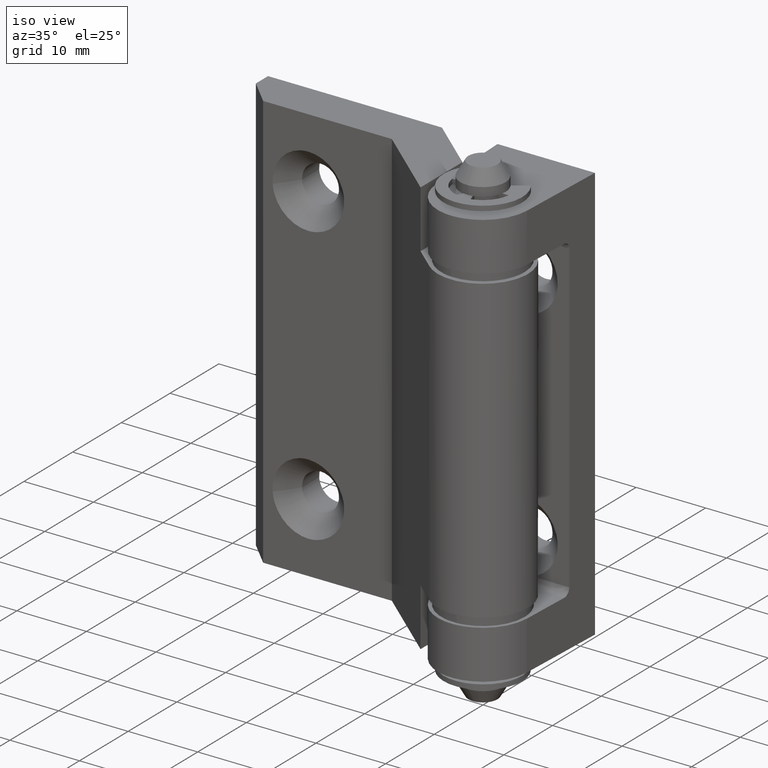
[diagram: clean part render]
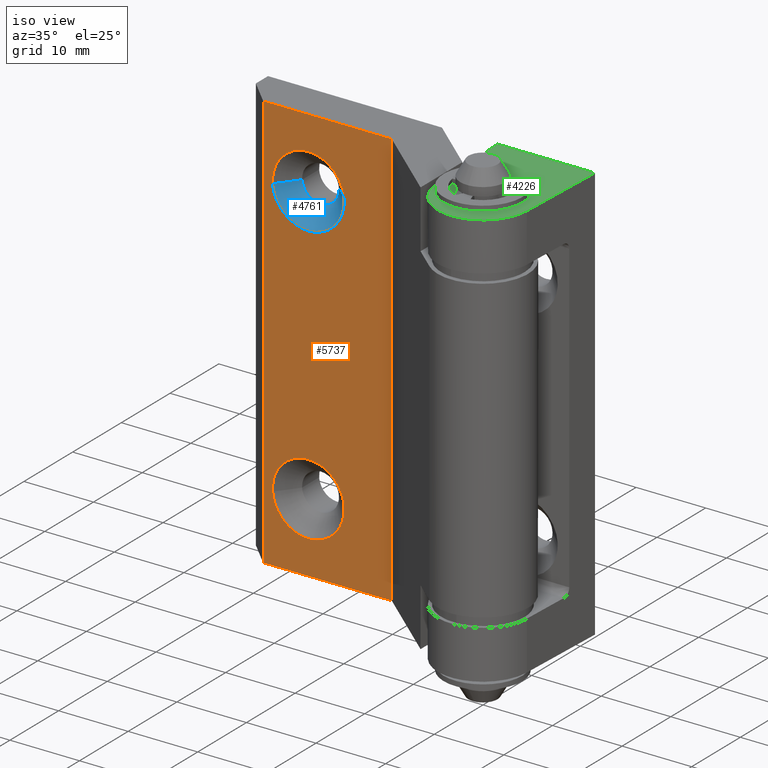
[diagram: same view with three faces highlighted in distinct colors, each labeled with its STEP entity id]
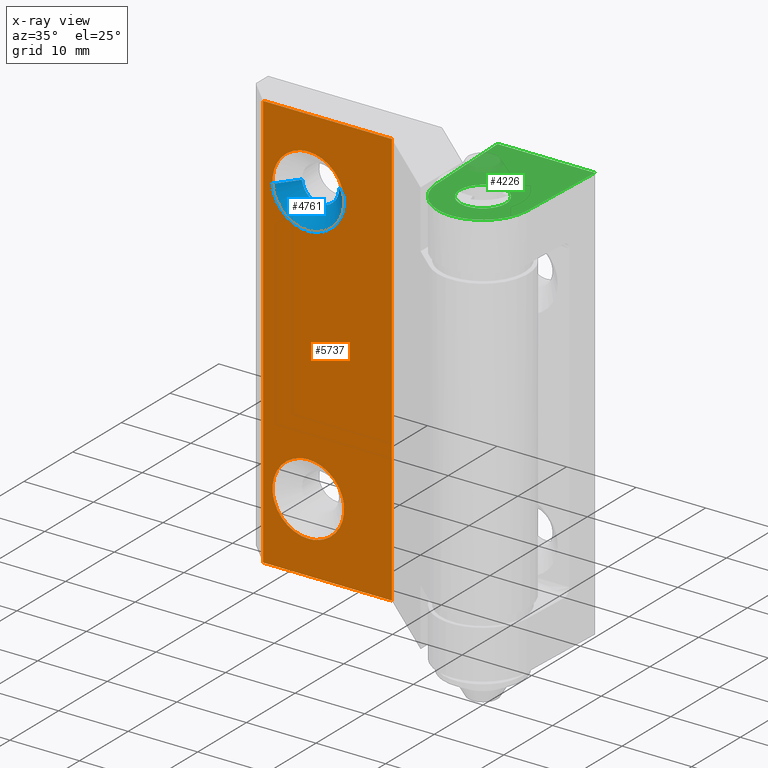
[diagram: x-ray of the same camera — body ghosted, the three highlighted faces saturated]
A machine part, iso view with three faces highlighted in distinct colors.
The next image is the same camera in x-ray (body ghosted, the three faces saturated) — at least one of them is partly hidden behind the body in this view.
Their STEP definitions:

[orange] entity #5737 — the highlighted face is a freeform B-spline surface patch.
#4654=CARTESIAN_POINT('',(-24.865905777742960,7.000000329918512,50.404066742920193));
#4655=VERTEX_POINT('',#4654);
#4661=CARTESIAN_POINT('',(-30.000030292437000,7.000000332482120,55.150002619484432));
#4662=VERTEX_POINT('',#4661);
#4663=CARTESIAN_POINT('',(-30.000030292437000,7.000000332482120,55.150002619484432));
#4664=CARTESIAN_POINT('',(-25.239419044801988,7.000000332482121,55.150002619484425));
#4665=CARTESIAN_POINT('',(-24.865905777742963,7.000000329918512,50.404066742920200));
#4673=(BOUNDED_CURVE()B_SPLINE_CURVE(2,(#4663,#4664,#4665),.UNSPECIFIED.,.F.,.U.)B_SPLINE_CURVE_WITH_KNOTS((3,3),(0.0,0.236331300255060),.UNSPECIFIED.)CURVE()GEOMETRIC_REPRESENTATION_ITEM()RATIONAL_B_SPLINE_CURVE((1.0,0.723120659047709,0.969723355383569))REPRESENTATION_ITEM(''));
#4674=EDGE_CURVE('',#4662,#4655,#4673,.T.);
#4676=CARTESIAN_POINT('',(-35.134154807131040,7.000000329918510,49.595938006824802));
#4677=VERTEX_POINT('',#4676);
#4678=CARTESIAN_POINT('',(-35.134154807131033,7.000000329918510,49.595938006824795));
#4679=CARTESIAN_POINT('',(-35.150030537048927,7.000000332482120,49.797658308489787));
#4680=CARTESIAN_POINT('',(-35.150030537048927,7.000000332482120,50.000002374872487));
#4681=CARTESIAN_POINT('',(-35.150030537048934,7.000000332482122,55.150002619484425));
#4682=CARTESIAN_POINT('',(-30.000030292437000,7.000000332482120,55.150002619484432));
#4690=(BOUNDED_CURVE()B_SPLINE_CURVE(2,(#4678,#4679,#4680,#4681,#4682),.UNSPECIFIED.,.F.,.U.)B_SPLINE_CURVE_WITH_KNOTS((3,2,3),(0.736331300255059,0.750000000000000,1.0),.UNSPECIFIED.)CURVE()GEOMETRIC_REPRESENTATION_ITEM()RATIONAL_B_SPLINE_CURVE((0.969723355383568,0.983986122138839,1.0,0.707106781186547,1.0))REPRESENTATION_ITEM(''));
#4691=EDGE_CURVE('',#4677,#4662,#4690,.T.);
#4728=CARTESIAN_POINT('',(-30.000030292437000,7.000000332482120,44.850002130260563));
#4729=VERTEX_POINT('',#4728);
#4730=CARTESIAN_POINT('',(-30.000030292437000,7.000000332482120,44.850002130260563));
#4731=CARTESIAN_POINT('',(-34.760641540072001,7.000000332482122,44.850002130260577));
#4732=CARTESIAN_POINT('',(-35.134154807131040,7.000000329918510,49.595938006824788));
#4740=(BOUNDED_CURVE()B_SPLINE_CURVE(2,(#4730,#4731,#4732),.UNSPECIFIED.,.F.,.U.)B_SPLINE_CURVE_WITH_KNOTS((3,3),(0.500000000000000,0.736331300255059),.UNSPECIFIED.)CURVE()GEOMETRIC_REPRESENTATION_ITEM()RATIONAL_B_SPLINE_CURVE((1.0,0.723120659047709,0.969723355383569))REPRESENTATION_ITEM(''));
#4741=EDGE_CURVE('',#4729,#4677,#4740,.T.);
#4743=CARTESIAN_POINT('',(-24.865905777742956,7.000000329918512,50.404066742920193));
#4744=CARTESIAN_POINT('',(-24.850030047825065,7.000000332482119,50.202346441255195));
#4745=CARTESIAN_POINT('',(-24.850030047825069,7.000000332482120,50.000002374872487));
#4746=CARTESIAN_POINT('',(-24.850030047825069,7.000000332482122,44.850002130260556));
#4747=CARTESIAN_POINT('',(-30.000030292437000,7.000000332482120,44.850002130260563));
#4755=(BOUNDED_CURVE()B_SPLINE_CURVE(2,(#4743,#4744,#4745,#4746,#4747),.UNSPECIFIED.,.F.,.U.)B_SPLINE_CURVE_WITH_KNOTS((3,2,3),(0.236331300255060,0.250000000000000,0.500000000000000),.UNSPECIFIED.)CURVE()GEOMETRIC_REPRESENTATION_ITEM()RATIONAL_B_SPLINE_CURVE((0.969723355383569,0.983986122138839,1.0,0.707106781186547,1.0))REPRESENTATION_ITEM(''));
#4756=EDGE_CURVE('',#4655,#4729,#4755,.T.);
#4986=CARTESIAN_POINT('',(-24.865905777742960,7.000000329918512,10.404066742920239));
#4987=VERTEX_POINT('',#4986);
#4993=CARTESIAN_POINT('',(-30.000030292437000,7.000000332482120,15.150002619484470));
#4994=VERTEX_POINT('',#4993);
#4995=CARTESIAN_POINT('',(-30.000030292437000,7.000000332482120,15.150002619484470));
#4996=CARTESIAN_POINT('',(-25.239419044801998,7.000000332482122,15.150002619484466));
#4997=CARTESIAN_POINT('',(-24.865905777742963,7.000000329918512,10.404066742920239));
#5005=(BOUNDED_CURVE()B_SPLINE_CURVE(2,(#4995,#4996,#4997),.UNSPECIFIED.,.F.,.U.)B_SPLINE_CURVE_WITH_KNOTS((3,3),(0.0,0.236331300255059),.UNSPECIFIED.)CURVE()GEOMETRIC_REPRESENTATION_ITEM()RATIONAL_B_SPLINE_CURVE((1.0,0.723120659047709,0.969723355383569))REPRESENTATION_ITEM(''));
#5006=EDGE_CURVE('',#4994,#4987,#5005,.T.);
#5008=CARTESIAN_POINT('',(-35.134154807131040,7.000000329918510,9.595938006824838));
#5009=VERTEX_POINT('',#5008);
#5010=CARTESIAN_POINT('',(-35.134154807131033,7.000000329918510,9.595938006824838));
#5011=CARTESIAN_POINT('',(-35.150030537048927,7.000000332482120,9.797658308489835));
#5012=CARTESIAN_POINT('',(-35.150030537048927,7.000000332482120,10.000002374872540));
#5013=CARTESIAN_POINT('',(-35.150030537048934,7.000000332482122,15.150002619484475));
#5014=CARTESIAN_POINT('',(-30.000030292437000,7.000000332482120,15.150002619484470));
#5022=(BOUNDED_CURVE()B_SPLINE_CURVE(2,(#5010,#5011,#5012,#5013,#5014),.UNSPECIFIED.,.F.,.U.)B_SPLINE_CURVE_WITH_KNOTS((3,2,3),(0.736331300255059,0.750000000000000,1.0),.UNSPECIFIED.)CURVE()GEOMETRIC_REPRESENTATION_ITEM()RATIONAL_B_SPLINE_CURVE((0.969723355383568,0.983986122138839,1.0,0.707106781186547,1.0))REPRESENTATION_ITEM(''));
#5023=EDGE_CURVE('',#5009,#4994,#5022,.T.);
#5060=CARTESIAN_POINT('',(-30.000030292437000,7.000000332482120,4.850002130260610));
#5061=VERTEX_POINT('',#5060);
#5062=CARTESIAN_POINT('',(-30.000030292437000,7.000000332482120,4.850002130260610));
#5063=CARTESIAN_POINT('',(-34.760641540072001,7.000000332482122,4.850002130260610));
#5064=CARTESIAN_POINT('',(-35.134154807131040,7.000000329918510,9.595938006824838));
#5072=(BOUNDED_CURVE()B_SPLINE_CURVE(2,(#5062,#5063,#5064),.UNSPECIFIED.,.F.,.U.)B_SPLINE_CURVE_WITH_KNOTS((3,3),(0.500000000000000,0.736331300255059),.UNSPECIFIED.)CURVE()GEOMETRIC_REPRESENTATION_ITEM()RATIONAL_B_SPLINE_CURVE((1.0,0.723120659047709,0.969723355383569))REPRESENTATION_ITEM(''));
#5073=EDGE_CURVE('',#5061,#5009,#5072,.T.);
#5075=CARTESIAN_POINT('',(-24.865905777742963,7.000000329918512,10.404066742920239));
#5076=CARTESIAN_POINT('',(-24.850030047825065,7.000000332482120,10.202346441255242));
#5077=CARTESIAN_POINT('',(-24.850030047825069,7.000000332482120,10.000002374872540));
#5078=CARTESIAN_POINT('',(-24.850030047825069,7.000000332482122,4.850002130260609));
#5079=CARTESIAN_POINT('',(-30.000030292437000,7.000000332482120,4.850002130260610));
#5087=(BOUNDED_CURVE()B_SPLINE_CURVE(2,(#5075,#5076,#5077,#5078,#5079),.UNSPECIFIED.,.F.,.U.)B_SPLINE_CURVE_WITH_KNOTS((3,2,3),(0.236331300255059,0.250000000000000,0.500000000000000),.UNSPECIFIED.)CURVE()GEOMETRIC_REPRESENTATION_ITEM()RATIONAL_B_SPLINE_CURVE((0.969723355383569,0.983986122138839,1.0,0.707106781186547,1.0))REPRESENTATION_ITEM(''));
#5088=EDGE_CURVE('',#4987,#5061,#5087,.T.);
#5639=CARTESIAN_POINT('',(-36.500030601170501,7.000000332482120,0.0));
#5640=VERTEX_POINT('',#5639);
#5646=CARTESIAN_POINT('',(-36.500030601170501,7.000000332482120,60.000002849847100));
#5647=VERTEX_POINT('',#5646);
#5648=CARTESIAN_POINT('',(-36.500030601170501,7.000000332482120,60.000002849847100));
#5649=CARTESIAN_POINT('',(-36.500030601170501,7.000000332482120,0.0));
#5650=QUASI_UNIFORM_CURVE('',1,(#5648,#5649),.UNSPECIFIED.,.F.,.U.);
#5651=EDGE_CURVE('',#5647,#5640,#5650,.T.);
#5698=CARTESIAN_POINT('',(-37.424105543110102,7.000000332482120,62.997004002379512));
#5699=CARTESIAN_POINT('',(-37.424105543110102,7.000000332482120,-2.997001688974236));
#5700=CARTESIAN_POINT('',(-17.075955607542781,7.000000332482120,62.997004002379512));
#5701=CARTESIAN_POINT('',(-17.075955607542781,7.000000332482120,-2.997001688974236));
#5702=B_SPLINE_SURFACE_WITH_KNOTS('',1,1,((#5698,#5700),(#5699,#5701)),.UNSPECIFIED.,.F.,.F.,.U.,(2,2),(2,2),(0.0,65.994005691353749),(0.0,20.348149935567321),.UNSPECIFIED.);
#5703=CARTESIAN_POINT('',(-18.000029722467900,7.000000332482120,0.0));
#5704=VERTEX_POINT('',#5703);
#5705=CARTESIAN_POINT('',(-18.000029722467900,7.000000332482120,0.0));
#5706=CARTESIAN_POINT('',(-36.500030601170501,7.000000332482120,0.0));
#5707=QUASI_UNIFORM_CURVE('',1,(#5705,#5706),.UNSPECIFIED.,.F.,.U.);
#5708=EDGE_CURVE('',#5704,#5640,#5707,.T.);
#5709=ORIENTED_EDGE('',*,*,#5708,.F.);
#5710=CARTESIAN_POINT('',(-18.000029722467900,7.000000332482120,60.000002849847100));
#5711=VERTEX_POINT('',#5710);
#5712=CARTESIAN_POINT('',(-18.000029722467900,7.000000332482120,60.000002849847100));
#5713=CARTESIAN_POINT('',(-18.000029722467900,7.000000332482120,0.0));
#5714=QUASI_UNIFORM_CURVE('',1,(#5712,#5713),.UNSPECIFIED.,.F.,.U.);
#5715=EDGE_CURVE('',#5711,#5704,#5714,.T.);
#5716=ORIENTED_EDGE('',*,*,#5715,.F.);
#5717=CARTESIAN_POINT('',(-18.000029722467900,7.000000332482120,60.000002849847100));
#5718=CARTESIAN_POINT('',(-36.500030601170501,7.000000332482120,60.000002849847100));
#5719=QUASI_UNIFORM_CURVE('',1,(#5717,#5718),.UNSPECIFIED.,.F.,.U.);
#5720=EDGE_CURVE('',#5711,#5647,#5719,.T.);
#5721=ORIENTED_EDGE('',*,*,#5720,.T.);
#5722=ORIENTED_EDGE('',*,*,#5651,.T.);
#5723=EDGE_LOOP('',(#5709,#5716,#5721,#5722));
#5724=FACE_OUTER_BOUND('',#5723,.T.);
#5725=ORIENTED_EDGE('',*,*,#5073,.T.);
#5726=ORIENTED_EDGE('',*,*,#5023,.T.);
#5727=ORIENTED_EDGE('',*,*,#5006,.T.);
#5728=ORIENTED_EDGE('',*,*,#5088,.T.);
#5729=EDGE_LOOP('',(#5725,#5726,#5727,#5728));
#5730=FACE_BOUND('',#5729,.T.);
#5731=ORIENTED_EDGE('',*,*,#4741,.T.);
#5732=ORIENTED_EDGE('',*,*,#4691,.T.);
#5733=ORIENTED_EDGE('',*,*,#4674,.T.);
#5734=ORIENTED_EDGE('',*,*,#4756,.T.);
#5735=EDGE_LOOP('',(#5731,#5732,#5733,#5734));
#5736=FACE_BOUND('',#5735,.T.);
#5737=ADVANCED_FACE('',(#5724,#5730,#5736),#5702,.T.);

[blue] entity #4761 — the highlighted face is a freeform B-spline surface patch.
#4448=CARTESIAN_POINT('',(-27.367336804793659,9.500000451225699,49.697635598882457));
#4449=VERTEX_POINT('',#4448);
#4450=CARTESIAN_POINT('',(-30.000030292437000,9.500000451225700,47.350002249004149));
#4451=VERTEX_POINT('',#4450);
#4452=CARTESIAN_POINT('',(-27.367336804793656,9.500000451225699,49.697635598882457));
#4453=CARTESIAN_POINT('',(-27.636964215162191,9.500000451225700,47.350002249004135));
#4454=CARTESIAN_POINT('',(-30.000030292437000,9.500000451225700,47.350002249004149));
#4462=(BOUNDED_CURVE()B_SPLINE_CURVE(2,(#4452,#4453,#4454),.UNSPECIFIED.,.F.,.U.)B_SPLINE_CURVE_WITH_KNOTS((3,3),(0.269767755885148,0.500000000000000),.UNSPECIFIED.)CURVE()GEOMETRIC_REPRESENTATION_ITEM()RATIONAL_B_SPLINE_CURVE((0.957343736443820,0.730266147786226,1.0))REPRESENTATION_ITEM(''));
#4463=EDGE_CURVE('',#4449,#4451,#4462,.T.);
#4502=CARTESIAN_POINT('',(-32.645087647627619,9.500000451225342,49.838223962053519));
#4503=VERTEX_POINT('',#4502);
#4509=CARTESIAN_POINT('',(-30.000030292437000,9.500000451225700,47.350002249004149));
#4510=CARTESIAN_POINT('',(-32.492901700245852,9.500000451225700,47.350002249004142));
#4511=CARTESIAN_POINT('',(-32.645087647627619,9.500000451225342,49.838223962053519));
#4519=(BOUNDED_CURVE()B_SPLINE_CURVE(2,(#4509,#4510,#4511),.UNSPECIFIED.,.F.,.U.)B_SPLINE_CURVE_WITH_KNOTS((3,3),(0.500000000000000,0.739332976895568),.UNSPECIFIED.)CURVE()GEOMETRIC_REPRESENTATION_ITEM()RATIONAL_B_SPLINE_CURVE((1.0,0.719603976115405,0.976072073078658))REPRESENTATION_ITEM(''));
#4520=EDGE_CURVE('',#4451,#4503,#4519,.T.);
#4551=CARTESIAN_POINT('',(-27.358199232539739,9.500000451164677,50.207918988897958));
#4552=VERTEX_POINT('',#4551);
#4553=CARTESIAN_POINT('',(-27.358199232539743,9.500000451164677,50.207918988897958));
#4554=CARTESIAN_POINT('',(-27.350030166568647,9.500000451225700,50.104121163856739));
#4555=CARTESIAN_POINT('',(-27.350030166568651,9.500000451225700,50.000002374872487));
#4556=CARTESIAN_POINT('',(-27.350030166568647,9.500000451225700,49.848323694784042));
#4557=CARTESIAN_POINT('',(-27.367336804793663,9.500000451225699,49.697635598882449));
#4565=(BOUNDED_CURVE()B_SPLINE_CURVE(2,(#4553,#4554,#4555,#4556,#4557),.UNSPECIFIED.,.F.,.U.)B_SPLINE_CURVE_WITH_KNOTS((3,2,3),(0.236331300572243,0.250000000000000,0.269767755885148),.UNSPECIFIED.)CURVE()GEOMETRIC_REPRESENTATION_ITEM()RATIONAL_B_SPLINE_CURVE((0.969723356045506,0.983986122510442,1.0,0.976840633400322,0.957343736443820))REPRESENTATION_ITEM(''));
#4566=EDGE_CURVE('',#4552,#4449,#4565,.T.);
#4654=CARTESIAN_POINT('',(-24.865905777742960,7.000000329918512,50.404066742920193));
#4655=VERTEX_POINT('',#4654);
#4656=CARTESIAN_POINT('',(-27.358199232539739,9.500000451164677,50.207918988897958));
#4657=CARTESIAN_POINT('',(-24.865905777742960,7.000000329918512,50.404066742920193));
#4658=QUASI_UNIFORM_CURVE('',1,(#4656,#4657),.UNSPECIFIED.,.F.,.U.);
#4659=EDGE_CURVE('',#4552,#4655,#4658,.T.);
#4676=CARTESIAN_POINT('',(-35.134154807131040,7.000000329918510,49.595938006824802));
#4677=VERTEX_POINT('',#4676);
#4693=CARTESIAN_POINT('',(-32.645087647627619,9.500000451225342,49.838223962053519));
#4694=CARTESIAN_POINT('',(-35.134154807131040,7.000000329918510,49.595938006824802));
#4695=QUASI_UNIFORM_CURVE('',1,(#4693,#4694),.UNSPECIFIED.,.F.,.U.);
#4696=EDGE_CURVE('',#4503,#4677,#4695,.T.);
#4702=CARTESIAN_POINT('',(-32.585902800216147,9.562500454194289,49.877658407207178));
#4703=CARTESIAN_POINT('',(-32.582749102072164,9.562500454194288,49.837586872913846));
#4704=CARTESIAN_POINT('',(-32.376541096153964,9.562500454194291,47.217465731478718));
#4705=CARTESIAN_POINT('',(-29.797017372598599,9.562500454194291,47.420478651317133));
#4706=CARTESIAN_POINT('',(-27.217493649043217,9.562500454194291,47.623491571155533));
#4707=CARTESIAN_POINT('',(-27.421946701380755,9.562500454194295,50.221313913091926));
#4708=CARTESIAN_POINT('',(-27.423378395456730,9.562500454194289,50.239505311141002));
#4709=CARTESIAN_POINT('',(-35.210813238366192,6.935937829439314,49.753467459353701));
#4710=CARTESIAN_POINT('',(-35.204458231900958,6.935937829439312,49.672719446106832));
#4711=CARTESIAN_POINT('',(-34.788929176496950,6.935937829439315,44.392922194314067));
#4712=CARTESIAN_POINT('',(-29.590939644187760,6.935937829439315,44.802012842563308));
#4713=CARTESIAN_POINT('',(-24.392950111878580,6.935937829439315,45.211103490812540));
#4714=CARTESIAN_POINT('',(-24.804942766256787,6.935937829439316,50.445966507141918));
#4715=CARTESIAN_POINT('',(-24.807827768147824,6.935937829439313,50.482623931833857));
#4723=(BOUNDED_SURFACE()B_SPLINE_SURFACE(2,1,((#4702,#4709),(#4703,#4710),(#4704,#4711),(#4705,#4712),(#4706,#4713),(#4707,#4714),(#4708,#4715)),.UNSPECIFIED.,.F.,.F.,.U.)B_SPLINE_SURFACE_WITH_KNOTS((3,1,2,1,3),(2,2),(0.0,0.193541851563522,8.832483872135187,17.471425892706851,17.558348414416020),(0.0,3.715428564997256),.UNSPECIFIED.)GEOMETRIC_REPRESENTATION_ITEM()RATIONAL_B_SPLINE_SURFACE(((1.013123619939703,1.013123619939703),(1.006561809969852,1.006561809969852),(0.707106781186548,0.707106781186548),(1.0,1.0),(0.707106781186548,0.707106781186548),(1.002947006370705,1.002947006370705),(1.005894012741411,1.005894012741411)))REPRESENTATION_ITEM('')SURFACE());
#4724=ORIENTED_EDGE('',*,*,#4566,.T.);
#4725=ORIENTED_EDGE('',*,*,#4463,.T.);
#4726=ORIENTED_EDGE('',*,*,#4520,.T.);
#4727=ORIENTED_EDGE('',*,*,#4696,.T.);
#4728=CARTESIAN_POINT('',(-30.000030292437000,7.000000332482120,44.850002130260563));
#4729=VERTEX_POINT('',#4728);
#4730=CARTESIAN_POINT('',(-30.000030292437000,7.000000332482120,44.850002130260563));
#4731=CARTESIAN_POINT('',(-34.760641540072001,7.000000332482122,44.850002130260577));
#4732=CARTESIAN_POINT('',(-35.134154807131040,7.000000329918510,49.595938006824788));
#4740=(BOUNDED_CURVE()B_SPLINE_CURVE(2,(#4730,#4731,#4732),.UNSPECIFIED.,.F.,.U.)B_SPLINE_CURVE_WITH_KNOTS((3,3),(0.500000000000000,0.736331300255059),.UNSPECIFIED.)CURVE()GEOMETRIC_REPRESENTATION_ITEM()RATIONAL_B_SPLINE_CURVE((1.0,0.723120659047709,0.969723355383569))REPRESENTATION_ITEM(''));
#4741=EDGE_CURVE('',#4729,#4677,#4740,.T.);
#4742=ORIENTED_EDGE('',*,*,#4741,.F.);
#4743=CARTESIAN_POINT('',(-24.865905777742956,7.000000329918512,50.404066742920193));
#4744=CARTESIAN_POINT('',(-24.850030047825065,7.000000332482119,50.202346441255195));
#4745=CARTESIAN_POINT('',(-24.850030047825069,7.000000332482120,50.000002374872487));
#4746=CARTESIAN_POINT('',(-24.850030047825069,7.000000332482122,44.850002130260556));
#4747=CARTESIAN_POINT('',(-30.000030292437000,7.000000332482120,44.850002130260563));
#4755=(BOUNDED_CURVE()B_SPLINE_CURVE(2,(#4743,#4744,#4745,#4746,#4747),.UNSPECIFIED.,.F.,.U.)B_SPLINE_CURVE_WITH_KNOTS((3,2,3),(0.236331300255060,0.250000000000000,0.500000000000000),.UNSPECIFIED.)CURVE()GEOMETRIC_REPRESENTATION_ITEM()RATIONAL_B_SPLINE_CURVE((0.969723355383569,0.983986122138839,1.0,0.707106781186547,1.0))REPRESENTATION_ITEM(''));
#4756=EDGE_CURVE('',#4655,#4729,#4755,.T.);
#4757=ORIENTED_EDGE('',*,*,#4756,.F.);
#4758=ORIENTED_EDGE('',*,*,#4659,.F.);
#4759=EDGE_LOOP('',(#4724,#4725,#4726,#4727,#4742,#4757,#4758));
#4760=FACE_OUTER_BOUND('',#4759,.T.);
#4761=ADVANCED_FACE('',(#4760),#4723,.F.);

[green] entity #4226 — the highlighted face is a freeform B-spline surface patch.
#3541=CARTESIAN_POINT('',(0.028768699835959,3.299874346109976,60.000002849847093));
#3542=VERTEX_POINT('',#3541);
#3548=CARTESIAN_POINT('',(-3.300028867513606,0.0,60.000002849847100));
#3549=VERTEX_POINT('',#3548);
#3550=CARTESIAN_POINT('',(-3.300028867513606,0.0,60.000002849847100));
#3551=CARTESIAN_POINT('',(-3.300028867513607,3.300000000000000,60.000002849847093));
#3552=CARTESIAN_POINT('',(-0.000028867513606,3.300000000000000,60.000002849847100));
#3553=CARTESIAN_POINT('',(0.014370190399649,3.300000000000000,60.000002849847100));
#3554=CARTESIAN_POINT('',(0.028768699835959,3.299874346109976,60.000002849847100));
#3562=(BOUNDED_CURVE()B_SPLINE_CURVE(2,(#3550,#3551,#3552,#3553,#3554),.UNSPECIFIED.,.F.,.U.)B_SPLINE_CURVE_WITH_KNOTS((3,2,3),(0.500000000000000,0.750000000000000,0.751539894356865),.UNSPECIFIED.)CURVE()GEOMETRIC_REPRESENTATION_ITEM()RATIONAL_B_SPLINE_CURVE((1.0,0.707106781186548,1.0,0.998195901540741,0.996414028049775))REPRESENTATION_ITEM(''));
#3563=EDGE_CURVE('',#3549,#3542,#3562,.T.);
#3565=CARTESIAN_POINT('',(-0.409651274478606,-3.274478505611572,60.000002849847100));
#3566=VERTEX_POINT('',#3565);
#3567=CARTESIAN_POINT('',(-0.409651274478606,-3.274478505611573,60.000002849847093));
#3568=CARTESIAN_POINT('',(-3.300028867513607,-2.912905380313650,60.000002849847107));
#3569=CARTESIAN_POINT('',(-3.300028867513606,0.0,60.000002849847100));
#3577=(BOUNDED_CURVE()B_SPLINE_CURVE(2,(#3567,#3568,#3569),.UNSPECIFIED.,.F.,.U.)B_SPLINE_CURVE_WITH_KNOTS((3,3),(0.271473928981163,0.500000000000000),.UNSPECIFIED.)CURVE()GEOMETRIC_REPRESENTATION_ITEM()RATIONAL_B_SPLINE_CURVE((0.954005430254417,0.732265053906005,1.0))REPRESENTATION_ITEM(''));
#3578=EDGE_CURVE('',#3566,#3549,#3577,.T.);
#3628=CARTESIAN_POINT('',(3.299971132486394,0.0,60.000002849847100));
#3629=VERTEX_POINT('',#3628);
#3630=CARTESIAN_POINT('',(3.299971132486394,0.0,60.000002849847100));
#3631=CARTESIAN_POINT('',(3.299971132486394,-3.300000000000000,60.000002849847093));
#3632=CARTESIAN_POINT('',(-0.000028867513606,-3.300000000000000,60.000002849847100));
#3633=CARTESIAN_POINT('',(-0.205635128476890,-3.300000000000000,60.000002849847100));
#3634=CARTESIAN_POINT('',(-0.409651274478606,-3.274478505611572,60.000002849847100));
#3642=(BOUNDED_CURVE()B_SPLINE_CURVE(2,(#3630,#3631,#3632,#3633,#3634),.UNSPECIFIED.,.F.,.U.)B_SPLINE_CURVE_WITH_KNOTS((3,2,3),(0.0,0.250000000000000,0.271473928981163),.UNSPECIFIED.)CURVE()GEOMETRIC_REPRESENTATION_ITEM()RATIONAL_B_SPLINE_CURVE((1.0,0.707106781186548,1.0,0.974841727280543,0.954005430254417))REPRESENTATION_ITEM(''));
#3643=EDGE_CURVE('',#3629,#3566,#3642,.T.);
#3645=CARTESIAN_POINT('',(0.028768699835959,3.299874346109976,60.000002849847093));
#3646=CARTESIAN_POINT('',(3.299971132486394,3.271326994557094,60.000002849847100));
#3647=CARTESIAN_POINT('',(3.299971132486394,0.0,60.000002849847100));
#3655=(BOUNDED_CURVE()B_SPLINE_CURVE(2,(#3645,#3646,#3647),.UNSPECIFIED.,.F.,.U.)B_SPLINE_CURVE_WITH_KNOTS((3,3),(0.751539894356865,1.0),.UNSPECIFIED.)CURVE()GEOMETRIC_REPRESENTATION_ITEM()RATIONAL_B_SPLINE_CURVE((0.996414028049774,0.708910879645807,1.0))REPRESENTATION_ITEM(''));
#3656=EDGE_CURVE('',#3542,#3629,#3655,.T.);
#4175=CARTESIAN_POINT('',(-7.699329074653964,-7.474025500254338,60.000002849847100));
#4176=CARTESIAN_POINT('',(7.699271840305794,-7.474025500254338,60.000002849847100));
#4177=CARTESIAN_POINT('',(-7.699329074653964,13.974026157675050,60.000002849847100));
#4178=CARTESIAN_POINT('',(7.699271840305794,13.974026157675050,60.000002849847100));
#4179=B_SPLINE_SURFACE_WITH_KNOTS('',1,1,((#4175,#4177),(#4176,#4178)),.UNSPECIFIED.,.F.,.F.,.U.,(2,2),(2,2),(0.0,15.398600914959760),(0.0,21.448051657929380),.UNSPECIFIED.);
#4180=CARTESIAN_POINT('',(6.495259137377031,-0.247462617497461,60.000002849847100));
#4181=VERTEX_POINT('',#4180);
#4182=CARTESIAN_POINT('',(6.999971464968500,13.000000617466879,60.000002849847100));
#4183=VERTEX_POINT('',#4182);
#4184=CARTESIAN_POINT('',(6.495259137377031,-0.247462617497461,60.000002849847100));
#4185=CARTESIAN_POINT('',(6.999971464968500,13.000000617466879,60.000002849847100));
#4186=QUASI_UNIFORM_CURVE('',1,(#4184,#4185),.UNSPECIFIED.,.F.,.U.);
#4187=EDGE_CURVE('',#4181,#4183,#4186,.T.);
#4188=ORIENTED_EDGE('',*,*,#4187,.T.);
#4189=CARTESIAN_POINT('',(-7.000029199995709,13.000000617466879,60.000002849847100));
#4190=VERTEX_POINT('',#4189);
#4191=CARTESIAN_POINT('',(6.999971464968500,13.000000617466879,60.000002849847100));
#4192=CARTESIAN_POINT('',(-7.000029199995709,13.000000617466879,60.000002849847100));
#4193=QUASI_UNIFORM_CURVE('',1,(#4191,#4192),.UNSPECIFIED.,.F.,.U.);
#4194=EDGE_CURVE('',#4183,#4190,#4193,.T.);
#4195=ORIENTED_EDGE('',*,*,#4194,.T.);
#4196=CARTESIAN_POINT('',(-6.495316872404200,-0.247462617497441,60.000002849847100));
#4197=VERTEX_POINT('',#4196);
#4198=CARTESIAN_POINT('',(-7.000029199995709,13.000000617466879,60.000002849847100));
#4199=CARTESIAN_POINT('',(-6.495316872404200,-0.247462617497441,60.000002849847100));
#4200=QUASI_UNIFORM_CURVE('',1,(#4198,#4199),.UNSPECIFIED.,.F.,.U.);
#4201=EDGE_CURVE('',#4190,#4197,#4200,.T.);
#4202=ORIENTED_EDGE('',*,*,#4201,.T.);
#4203=CARTESIAN_POINT('',(6.495259137377036,-0.247462617497463,60.000002849847100));
#4204=CARTESIAN_POINT('',(6.257045013244326,-6.500000308733465,60.000002849847107));
#4205=CARTESIAN_POINT('',(-0.000028867513606,-6.500000308733464,60.000002849847100));
#4206=CARTESIAN_POINT('',(-6.257102748271559,-6.500000308733465,60.000002849847107));
#4207=CARTESIAN_POINT('',(-6.495316872404249,-0.247462617497441,60.000002849847100));
#4215=(BOUNDED_CURVE()B_SPLINE_CURVE(2,(#4203,#4204,#4205,#4206,#4207),.UNSPECIFIED.,.F.,.U.)B_SPLINE_CURVE_WITH_KNOTS((3,2,3),(0.0,0.500000000000000,1.0),.UNSPECIFIED.)CURVE()GEOMETRIC_REPRESENTATION_ITEM()RATIONAL_B_SPLINE_CURVE((1.0,0.720441243306628,1.0,0.720441243306628,1.0))REPRESENTATION_ITEM(''));
#4216=EDGE_CURVE('',#4181,#4197,#4215,.T.);
#4217=ORIENTED_EDGE('',*,*,#4216,.F.);
#4218=EDGE_LOOP('',(#4188,#4195,#4202,#4217));
#4219=FACE_OUTER_BOUND('',#4218,.T.);
#4220=ORIENTED_EDGE('',*,*,#3563,.T.);
#4221=ORIENTED_EDGE('',*,*,#3656,.T.);
#4222=ORIENTED_EDGE('',*,*,#3643,.T.);
#4223=ORIENTED_EDGE('',*,*,#3578,.T.);
#4224=EDGE_LOOP('',(#4220,#4221,#4222,#4223));
#4225=FACE_BOUND('',#4224,.T.);
#4226=ADVANCED_FACE('',(#4219,#4225),#4179,.T.);